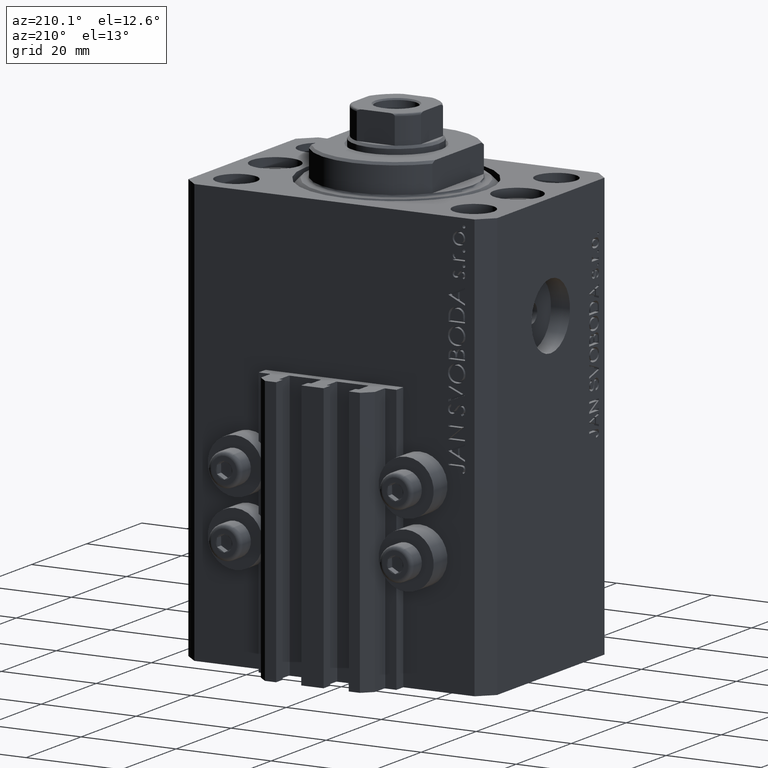
[diagram: clean part render]
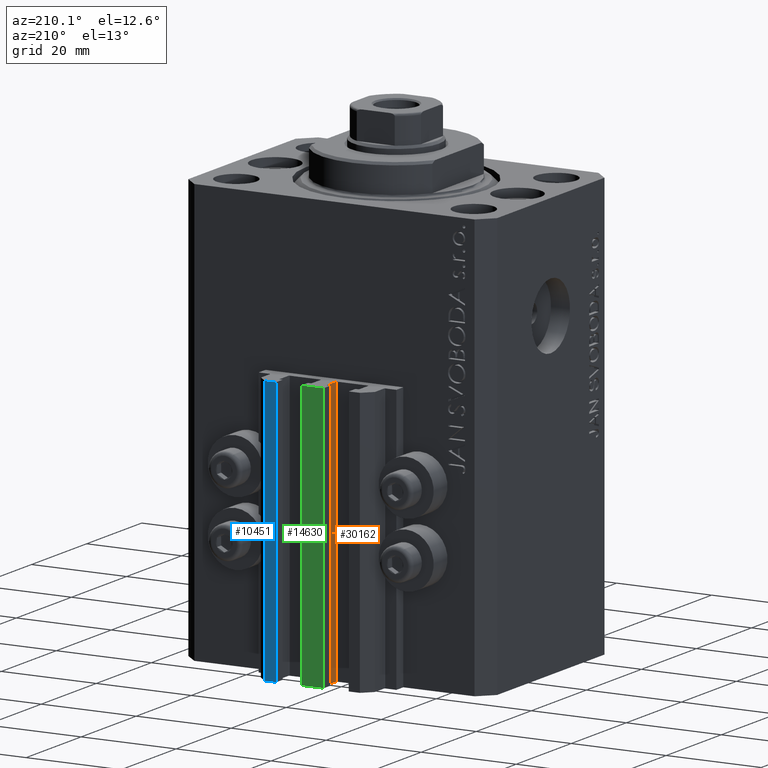
[diagram: same view with three faces highlighted in distinct colors, each labeled with its STEP entity id]
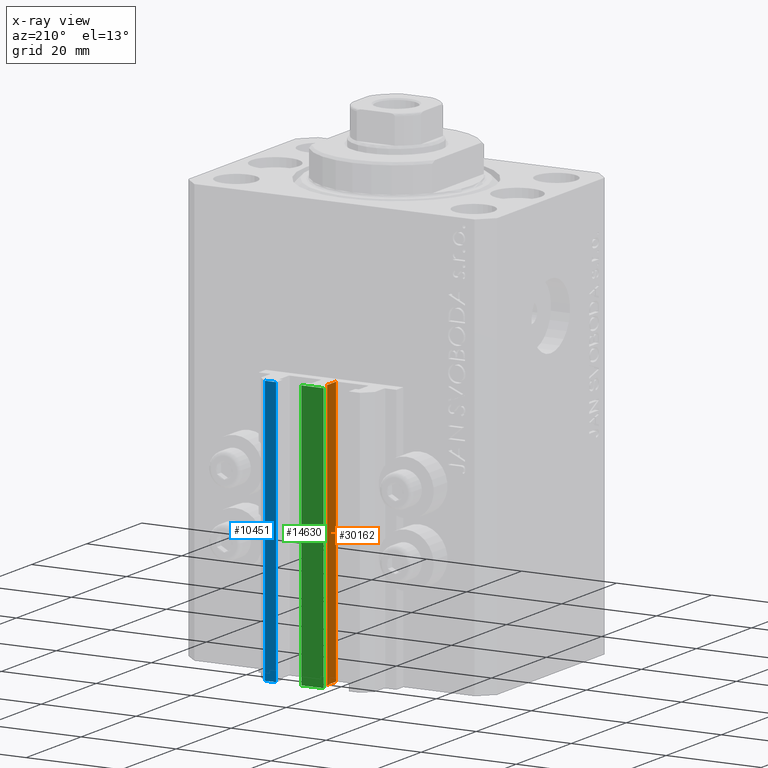
[diagram: x-ray of the same camera — body ghosted, the three highlighted faces saturated]
A machine part, auxiliary view with three faces highlighted in distinct colors.
The next image is the same camera in x-ray (body ghosted, the three faces saturated) — at least one of them is partly hidden behind the body in this view.
Their STEP definitions:

[orange] entity #30162 — the highlighted planar face has unit normal (-1, 0, 0).
#651 = LINE ( 'NONE', #30479, #33919 ) ;
#2780 = VERTEX_POINT ( 'NONE', #37560 ) ;
#4890 = DIRECTION ( 'NONE',  ( -6.776263578034386689E-17, -1.000000000000000000, 0.000000000000000000 ) ) ;
#5912 = CARTESIAN_POINT ( 'NONE',  ( -1.600000000000000755, 24.69999999999949480, -89.00000000000000000 ) ) ;
#5990 = ORIENTED_EDGE ( 'NONE', *, *, #10366, .T. ) ;
#6467 = DIRECTION ( 'NONE',  ( 0.000000000000000000, 0.000000000000000000, 1.000000000000000000 ) ) ;
#7889 = CARTESIAN_POINT ( 'NONE',  ( -1.600000000000000533, 27.89999999999950120, -33.00000000000000000 ) ) ;
#10366 = EDGE_CURVE ( 'NONE', #11422, #36190, #651, .T. ) ;
#11422 = VERTEX_POINT ( 'NONE', #35706 ) ;
#11481 = LINE ( 'NONE', #7889, #11911 ) ;
#11713 = DIRECTION ( 'NONE',  ( -6.776263578034385456E-17, -1.000000000000000000, 0.000000000000000000 ) ) ;
#11911 = VECTOR ( 'NONE', #11713, 1000.000000000000000 ) ;
#14678 = AXIS2_PLACEMENT_3D ( 'NONE', #19251, #30224, #4890 ) ;
#15504 = ORIENTED_EDGE ( 'NONE', *, *, #17973, .F. ) ;
#16002 = CARTESIAN_POINT ( 'NONE',  ( -1.600000000000003197, 27.89999999999950120, -33.00000000000000000 ) ) ;
#16397 = EDGE_LOOP ( 'NONE', ( #15504, #41700, #5990, #27782 ) ) ;
#17467 = LINE ( 'NONE', #25098, #17687 ) ;
#17687 = VECTOR ( 'NONE', #6467, 1000.000000000000000 ) ;
#17973 = EDGE_CURVE ( 'NONE', #46274, #2780, #11481, .T. ) ;
#19251 = CARTESIAN_POINT ( 'NONE',  ( -1.600000000000000533, 27.89999999999950120, -89.00000000000000000 ) ) ;
#21437 = LINE ( 'NONE', #21900, #37738 ) ;
#21900 = CARTESIAN_POINT ( 'NONE',  ( -1.600000000000003197, 27.89999999999950120, -89.00000000000000000 ) ) ;
#23741 = PLANE ( 'NONE',  #14678 ) ;
#25098 = CARTESIAN_POINT ( 'NONE',  ( -1.600000000000000755, 24.69999999999949480, -89.00000000000000000 ) ) ;
#27782 = ORIENTED_EDGE ( 'NONE', *, *, #28492, .T. ) ;
#28492 = EDGE_CURVE ( 'NONE', #36190, #2780, #17467, .T. ) ;
#29550 = DIRECTION ( 'NONE',  ( -6.776263578034385456E-17, -1.000000000000000000, 0.000000000000000000 ) ) ;
#30162 = ADVANCED_FACE ( 'NONE', ( #42114 ), #23741, .T. ) ;
#30224 = DIRECTION ( 'NONE',  ( -1.000000000000000000, 6.776263578034386689E-17, 0.000000000000000000 ) ) ;
#30479 = CARTESIAN_POINT ( 'NONE',  ( -1.600000000000000533, 27.89999999999950120, -89.00000000000000000 ) ) ;
#31697 = DIRECTION ( 'NONE',  ( 0.000000000000000000, 0.000000000000000000, 1.000000000000000000 ) ) ;
#33148 = EDGE_CURVE ( 'NONE', #11422, #46274, #21437, .T. ) ;
#33919 = VECTOR ( 'NONE', #29550, 1000.000000000000000 ) ;
#35706 = CARTESIAN_POINT ( 'NONE',  ( -1.600000000000003197, 27.89999999999950120, -89.00000000000000000 ) ) ;
#36190 = VERTEX_POINT ( 'NONE', #5912 ) ;
#37560 = CARTESIAN_POINT ( 'NONE',  ( -1.600000000000000755, 24.69999999999949480, -33.00000000000000000 ) ) ;
#37738 = VECTOR ( 'NONE', #31697, 1000.000000000000000 ) ;
#41700 = ORIENTED_EDGE ( 'NONE', *, *, #33148, .F. ) ;
#42114 = FACE_OUTER_BOUND ( 'NONE', #16397, .T. ) ;
#46274 = VERTEX_POINT ( 'NONE', #16002 ) ;

[blue] entity #10451 — the highlighted planar face has unit normal (-0, 1, 0).
#844 = VECTOR ( 'NONE', #11122, 1000.000000000000000 ) ;
#3360 = CARTESIAN_POINT ( 'NONE',  ( 7.649999999999995026, 30.49999999999949196, -89.00000000000000000 ) ) ;
#6155 = VECTOR ( 'NONE', #17938, 1000.000000000000000 ) ;
#6454 = DIRECTION ( 'NONE',  ( 0.000000000000000000, 0.000000000000000000, 1.000000000000000000 ) ) ;
#8065 = AXIS2_PLACEMENT_3D ( 'NONE', #13261, #41669, #41901 ) ;
#8624 = ORIENTED_EDGE ( 'NONE', *, *, #42673, .F. ) ;
#10451 = ADVANCED_FACE ( 'NONE', ( #24004 ), #35455, .T. ) ;
#11122 = DIRECTION ( 'NONE',  ( -1.000000000000000000, -1.476360405086644852E-15, 0.000000000000000000 ) ) ;
#12234 = LINE ( 'NONE', #26798, #26396 ) ;
#13261 = CARTESIAN_POINT ( 'NONE',  ( 9.999999999999994671, 30.49999999999949551, -89.00000000000000000 ) ) ;
#17782 = EDGE_CURVE ( 'NONE', #29376, #43131, #12234, .T. ) ;
#17938 = DIRECTION ( 'NONE',  ( 0.000000000000000000, 0.000000000000000000, 1.000000000000000000 ) ) ;
#19171 = VERTEX_POINT ( 'NONE', #23806 ) ;
#22270 = EDGE_LOOP ( 'NONE', ( #28958, #8624, #39657, #27452 ) ) ;
#23131 = EDGE_CURVE ( 'NONE', #43131, #19171, #24858, .T. ) ;
#23364 = CARTESIAN_POINT ( 'NONE',  ( 7.649999999999995026, 30.49999999999949196, -89.00000000000000000 ) ) ;
#23806 = CARTESIAN_POINT ( 'NONE',  ( 7.649999999999995026, 30.49999999999949196, -33.00000000000000000 ) ) ;
#24004 = FACE_OUTER_BOUND ( 'NONE', #22270, .T. ) ;
#24858 = LINE ( 'NONE', #3360, #6155 ) ;
#26396 = VECTOR ( 'NONE', #41349, 1000.000000000000000 ) ;
#26798 = CARTESIAN_POINT ( 'NONE',  ( 9.999999999999994671, 30.49999999999949551, -89.00000000000000000 ) ) ;
#27452 = ORIENTED_EDGE ( 'NONE', *, *, #23131, .T. ) ;
#27775 = EDGE_CURVE ( 'NONE', #41724, #19171, #43817, .T. ) ;
#28223 = CARTESIAN_POINT ( 'NONE',  ( 9.999999999999994671, 30.49999999999949551, -89.00000000000000000 ) ) ;
#28958 = ORIENTED_EDGE ( 'NONE', *, *, #27775, .F. ) ;
#29376 = VERTEX_POINT ( 'NONE', #28223 ) ;
#31767 = LINE ( 'NONE', #46332, #42467 ) ;
#35455 = PLANE ( 'NONE',  #8065 ) ;
#39657 = ORIENTED_EDGE ( 'NONE', *, *, #17782, .T. ) ;
#41320 = CARTESIAN_POINT ( 'NONE',  ( 9.999999999999994671, 30.49999999999949551, -33.00000000000000000 ) ) ;
#41349 = DIRECTION ( 'NONE',  ( -1.000000000000000000, -1.476360405086644852E-15, 0.000000000000000000 ) ) ;
#41669 = DIRECTION ( 'NONE',  ( -1.476360405086644655E-15, 1.000000000000000000, 0.000000000000000000 ) ) ;
#41724 = VERTEX_POINT ( 'NONE', #41320 ) ;
#41901 = DIRECTION ( 'NONE',  ( -1.000000000000000000, -1.476360405086644655E-15, 0.000000000000000000 ) ) ;
#42467 = VECTOR ( 'NONE', #6454, 1000.000000000000000 ) ;
#42673 = EDGE_CURVE ( 'NONE', #29376, #41724, #31767, .T. ) ;
#43131 = VERTEX_POINT ( 'NONE', #23364 ) ;
#43817 = LINE ( 'NONE', #46928, #844 ) ;
#46332 = CARTESIAN_POINT ( 'NONE',  ( 9.999999999999994671, 30.49999999999949551, -89.00000000000000000 ) ) ;
#46928 = CARTESIAN_POINT ( 'NONE',  ( 9.999999999999994671, 30.49999999999949551, -33.00000000000000000 ) ) ;

[green] entity #14630 — the highlighted planar face has unit normal (0, -1, 0).
#819 = CARTESIAN_POINT ( 'NONE',  ( 2.349999999999999645, 30.49999999999949907, -89.00000000000000000 ) ) ;
#2078 = ORIENTED_EDGE ( 'NONE', *, *, #45065, .T. ) ;
#2293 = DIRECTION ( 'NONE',  ( 0.000000000000000000, 0.000000000000000000, 1.000000000000000000 ) ) ;
#3736 = CARTESIAN_POINT ( 'NONE',  ( -2.350000000000003197, 30.49999999999949907, -89.00000000000000000 ) ) ;
#4957 = LINE ( 'NONE', #44366, #39005 ) ;
#7644 = CARTESIAN_POINT ( 'NONE',  ( -2.350000000000003197, 30.49999999999949907, -33.00000000000000000 ) ) ;
#9797 = VECTOR ( 'NONE', #21982, 1000.000000000000000 ) ;
#13176 = LINE ( 'NONE', #27744, #20224 ) ;
#13891 = PLANE ( 'NONE',  #26332 ) ;
#14630 = ADVANCED_FACE ( 'NONE', ( #25340 ), #13891, .F. ) ;
#15481 = DIRECTION ( 'NONE',  ( 0.000000000000000000, 0.000000000000000000, 1.000000000000000000 ) ) ;
#15514 = EDGE_LOOP ( 'NONE', ( #2078, #31227, #39806, #20276 ) ) ;
#19290 = VERTEX_POINT ( 'NONE', #41136 ) ;
#19752 = LINE ( 'NONE', #24015, #25779 ) ;
#20224 = VECTOR ( 'NONE', #38723, 1000.000000000000000 ) ;
#20276 = ORIENTED_EDGE ( 'NONE', *, *, #24926, .T. ) ;
#21450 = VERTEX_POINT ( 'NONE', #819 ) ;
#21753 = DIRECTION ( 'NONE',  ( 0.000000000000000000, -1.000000000000000000, 0.000000000000000000 ) ) ;
#21982 = DIRECTION ( 'NONE',  ( 1.000000000000000000, 0.000000000000000000, 0.000000000000000000 ) ) ;
#24015 = CARTESIAN_POINT ( 'NONE',  ( 2.349999999999999645, 30.49999999999949907, -89.00000000000000000 ) ) ;
#24926 = EDGE_CURVE ( 'NONE', #39915, #30945, #4957, .T. ) ;
#25340 = FACE_OUTER_BOUND ( 'NONE', #15514, .T. ) ;
#25779 = VECTOR ( 'NONE', #2293, 1000.000000000000000 ) ;
#26332 = AXIS2_PLACEMENT_3D ( 'NONE', #28224, #21753, #43479 ) ;
#27744 = CARTESIAN_POINT ( 'NONE',  ( -2.350000000000003197, 30.49999999999949907, -89.00000000000000000 ) ) ;
#28224 = CARTESIAN_POINT ( 'NONE',  ( -2.350000000000003197, 30.49999999999949907, -89.00000000000000000 ) ) ;
#28691 = LINE ( 'NONE', #7644, #9797 ) ;
#30945 = VERTEX_POINT ( 'NONE', #43368 ) ;
#31227 = ORIENTED_EDGE ( 'NONE', *, *, #44460, .F. ) ;
#37416 = EDGE_CURVE ( 'NONE', #39915, #21450, #13176, .T. ) ;
#38723 = DIRECTION ( 'NONE',  ( 1.000000000000000000, 0.000000000000000000, 0.000000000000000000 ) ) ;
#39005 = VECTOR ( 'NONE', #15481, 1000.000000000000000 ) ;
#39806 = ORIENTED_EDGE ( 'NONE', *, *, #37416, .F. ) ;
#39915 = VERTEX_POINT ( 'NONE', #3736 ) ;
#41136 = CARTESIAN_POINT ( 'NONE',  ( 2.349999999999999645, 30.49999999999949907, -33.00000000000000000 ) ) ;
#43368 = CARTESIAN_POINT ( 'NONE',  ( -2.350000000000003197, 30.49999999999949907, -33.00000000000000000 ) ) ;
#43479 = DIRECTION ( 'NONE',  ( 0.000000000000000000, -0.000000000000000000, -1.000000000000000000 ) ) ;
#44366 = CARTESIAN_POINT ( 'NONE',  ( -2.350000000000003197, 30.49999999999949907, -89.00000000000000000 ) ) ;
#44460 = EDGE_CURVE ( 'NONE', #21450, #19290, #19752, .T. ) ;
#45065 = EDGE_CURVE ( 'NONE', #30945, #19290, #28691, .T. ) ;